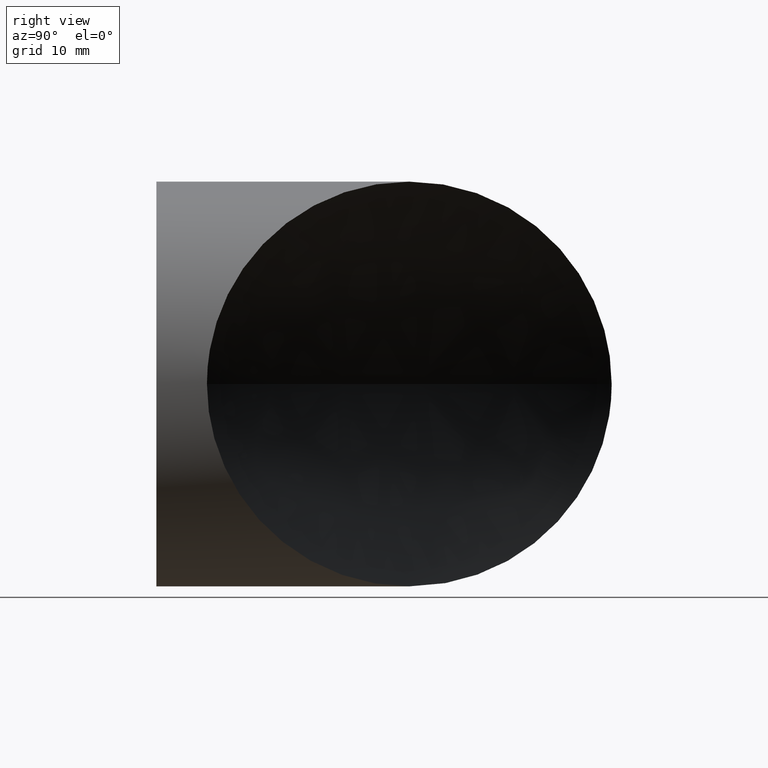
[diagram: clean part render]
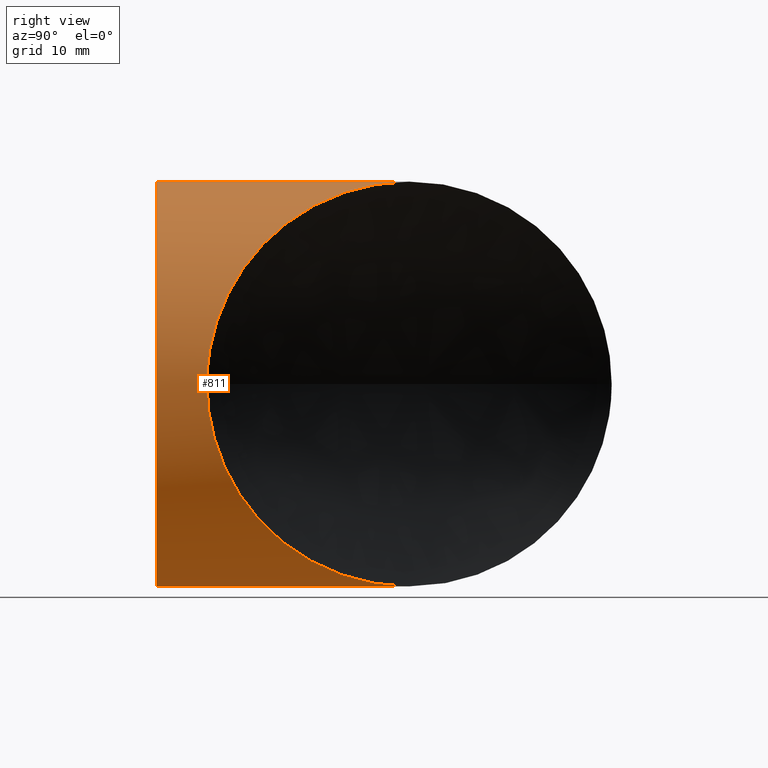
[diagram: same view with one face highlighted and labeled with its STEP entity id]
A machine part, right view. The second image highlights one B-rep face of the part: STEP entity #811.
In plain terms, the highlighted cylindrical surface (partial cylindrical patch) has radius 25.4 mm, axis along (-0, -1, -0).
Its self-contained STEP definition (entity closure, byte-faithful):
#10 = CARTESIAN_POINT ( 'NONE',  ( 3.110602869834276865E-15, 90.23632920900077181, 25.39999999999999858 ) ) ;
#30 = VERTEX_POINT ( 'NONE', #718 ) ;
#39 = CARTESIAN_POINT ( 'NONE',  ( 20.88705431034938798, 10.86294568977931618, -14.45970665876703443 ) ) ;
#44 = CARTESIAN_POINT ( 'NONE',  ( 15.75322996235737527, 15.99677003777224016, 19.94088469936381713 ) ) ;
#46 = CARTESIAN_POINT ( 'NONE',  ( 2.867070042870211832, 28.88292995726230927, -25.24789856614434314 ) ) ;
#54 = CARTESIAN_POINT ( 'NONE',  ( 3.574495887741338418, 28.17550411239097485, 25.15748655172640724 ) ) ;
#86 = VECTOR ( 'NONE', #746, 1000.000000000000000 ) ;
#101 = CARTESIAN_POINT ( 'NONE',  ( 21.85500477762742122, 9.894995222501284715, -12.97336527762334768 ) ) ;
#107 = CARTESIAN_POINT ( 'NONE',  ( 23.67062844458222770, 8.079371555545424854, 9.224653027086247903 ) ) ;
#108 = CARTESIAN_POINT ( 'NONE',  ( 7.107514868007380748, 24.64248513212402614, -24.42891655262618755 ) ) ;
#112 = CARTESIAN_POINT ( 'NONE',  ( 23.49425201712657341, 8.255747983001402446, -9.664520403935878079 ) ) ;
#117 = CARTESIAN_POINT ( 'NONE',  ( 17.59307431041942138, 14.15692568970981036, 18.39065751051364117 ) ) ;
#120 = CARTESIAN_POINT ( 'NONE',  ( 15.12322275978768715, 16.62677724034237770, 20.42218853992491745 ) ) ;
#127 = DIRECTION ( 'NONE',  ( 0.0000000000000000000, 1.000000000000000000, 0.0000000000000000000 ) ) ;
#129 = CARTESIAN_POINT ( 'NONE',  ( 3.110602869834276865E-15, 0.0000000000000000000, 25.39999999999999858 ) ) ;
#151 = EDGE_CURVE ( 'NONE', #402, #30, #394, .T. ) ;
#164 = CARTESIAN_POINT ( 'NONE',  ( 18.76394866295361297, 12.98605133717579996, -17.20628069572504160 ) ) ;
#169 = CARTESIAN_POINT ( 'NONE',  ( 15.14683054439614551, 16.60316945573448422, -20.40453238910384215 ) ) ;
#171 = CARTESIAN_POINT ( 'NONE',  ( 13.17241457465186194, 18.57758542547887259, 21.72089280077187823 ) ) ;
#181 = CARTESIAN_POINT ( 'NONE',  ( -3.679782173415781046E-12, 31.75000000013650236, 25.39999999999956160 ) ) ;
#192 = DIRECTION ( 'NONE',  ( 0.0000000000000000000, 0.0000000000000000000, -1.000000000000000000 ) ) ;
#195 = ORIENTED_EDGE ( 'NONE', *, *, #422, .T. ) ;
#205 = B_SPLINE_CURVE_WITH_KNOTS ( 'NONE', 3,
 ( #181, #520, #594, #513, #54, #523, #370, #871, #454, #675, #171, #516, #301, #120, #44, #117, #793, #374, #314, #449, #671, #511, #864, #308, #589, #869, #107, #881, #241, #804, #666, #232, #385, #600 ),
 .UNSPECIFIED., .F., .F.,
 ( 4, 2, 2, 2, 2, 2, 2, 2, 2, 2, 2, 2, 2, 2, 2, 2, 4 ),
 ( 0.09612468396210317734, 0.09912765318118503532, 0.1021306224002669072, 0.1081365608384306232, 0.1141424992765943391, 0.1156439838861352820, 0.1171454684956762110, 0.1201484377147580551, 0.1261543761529217711, 0.1276558607624626862, 0.1291573453720036013, 0.1321603145910854593, 0.1336617992006263744, 0.1351632838101672895, 0.1381662530292491475, 0.1411692222483309778, 0.1441721914674128358 ),
 .UNSPECIFIED. ) ;
#218 = VERTEX_POINT ( 'NONE', #129 ) ;
#227 = EDGE_CURVE ( 'NONE', #30, #529, #283, .T. ) ;
#230 = CARTESIAN_POINT ( 'NONE',  ( 20.11151564916537637, 11.63848435096375766, -15.52009358360201574 ) ) ;
#232 = CARTESIAN_POINT ( 'NONE',  ( 25.34003501377293333, 6.409964986354879990, 2.019679683124773639 ) ) ;
#233 = CARTESIAN_POINT ( 'NONE',  ( 24.80328668270988501, 6.946713317420750045, -5.495410143724362761 ) ) ;
#241 = CARTESIAN_POINT ( 'NONE',  ( 24.45451196593779741, 7.295488034191129678, 6.935761289249204431 ) ) ;
#283 = LINE ( 'NONE', #739, #86 ) ;
#301 = CARTESIAN_POINT ( 'NONE',  ( 14.15460011605796176, 17.59539988407230737, 21.09411549236201111 ) ) ;
#302 = CARTESIAN_POINT ( 'NONE',  ( 21.13504976809075231, 10.61495023203810817, -14.09492928022434555 ) ) ;
#306 = CARTESIAN_POINT ( 'NONE',  ( 11.21135902792945593, 20.53864097220131768, -22.84290149297242678 ) ) ;
#308 = CARTESIAN_POINT ( 'NONE',  ( 22.91856478369641081, 8.831435216432451440, 10.95957008674894340 ) ) ;
#314 = CARTESIAN_POINT ( 'NONE',  ( 20.36646652801895030, 11.38353347211029742, 15.18420568538931725 ) ) ;
#315 = CYLINDRICAL_SURFACE ( 'NONE', #344, 25.39999999999999858 ) ;
#344 = AXIS2_PLACEMENT_3D ( 'NONE', #398, #890, #192 ) ;
#363 = CARTESIAN_POINT ( 'NONE',  ( 2.883977778811441794E-14, 31.75000000013288570, -25.39999999999999147 ) ) ;
#368 = CARTESIAN_POINT ( 'NONE',  ( 24.90605418778440239, 6.843945812344093937, -5.009901835499978695 ) ) ;
#370 = CARTESIAN_POINT ( 'NONE',  ( 7.093618743404350724, 24.65638125672682079, 24.43274036757645362 ) ) ;
#374 = CARTESIAN_POINT ( 'NONE',  ( 20.10158260010981124, 11.64841740001844350, 15.53295033665355973 ) ) ;
#376 = CARTESIAN_POINT ( 'NONE',  ( 23.11892783635457960, 8.631072163773485073, -10.53081232288272950 ) ) ;
#385 = CARTESIAN_POINT ( 'NONE',  ( 25.39999999999913172, 6.350000000128638078, 1.008915357866120521 ) ) ;
#394 = B_SPLINE_CURVE_WITH_KNOTS ( 'NONE', 3,
 ( #866, #590, #669, #734, #515, #368, #233, #507, #441, #662, #112, #376, #872, #731, #101, #302, #39, #502, #230, #164, #583, #576, #169, #446, #658, #306, #794, #108, #721, #790, #46, #512, #586, #363 ),
 .UNSPECIFIED., .F., .F.,
 ( 4, 2, 2, 2, 2, 2, 2, 2, 2, 2, 2, 2, 2, 2, 2, 2, 4 ),
 ( 0.1441721914674128358, 0.1471718213889993410, 0.1486716363497926074, 0.1501714513105858462, 0.1531710812321723791, 0.1546708961929656179, 0.1561707111537588843, 0.1591703410753453896, 0.1606701560361386560, 0.1621699709969319225, 0.1681692308401049329, 0.1711688607616914659, 0.1741684906832779711, 0.1801677505264509815, 0.1861670103696240197, 0.1891666402912105249, 0.1921662702127970301 ),
 .UNSPECIFIED. ) ;
#398 = CARTESIAN_POINT ( 'NONE',  ( 0.0000000000000000000, 90.23632920900077181, 0.0000000000000000000 ) ) ;
#401 = DIRECTION ( 'NONE',  ( -0.0000000000000000000, -1.000000000000000000, -0.0000000000000000000 ) ) ;
#402 = VERTEX_POINT ( 'NONE', #763 ) ;
#409 = VECTOR ( 'NONE', #401, 1000.000000000000000 ) ;
#422 = EDGE_CURVE ( 'NONE', #785, #218, #567, .T. ) ;
#441 = CARTESIAN_POINT ( 'NONE',  ( 24.17195477904431655, 7.578045221083539396, -7.861663276407822920 ) ) ;
#446 = CARTESIAN_POINT ( 'NONE',  ( 13.86304219773789548, 17.88695780239301669, -21.29759325798054093 ) ) ;
#449 = CARTESIAN_POINT ( 'NONE',  ( 20.87945820685417786, 10.87054179327496328, 14.47070440999178587 ) ) ;
#454 = CARTESIAN_POINT ( 'NONE',  ( 11.18778706063964101, 20.56221293949156603, 22.85407206432742200 ) ) ;
#502 = CARTESIAN_POINT ( 'NONE',  ( 20.37567222706591252, 11.37432777306289644, -15.17182044832627597 ) ) ;
#507 = CARTESIAN_POINT ( 'NONE',  ( 24.45577271687534804, 7.294227283255354521, -6.931481260857233373 ) ) ;
#511 = CARTESIAN_POINT ( 'NONE',  ( 21.85001223646394664, 9.899987763665203389, 12.98188855473107317 ) ) ;
#512 = CARTESIAN_POINT ( 'NONE',  ( 1.434912573058196195, 30.31508742707463000, -25.36961762708924084 ) ) ;
#513 = CARTESIAN_POINT ( 'NONE',  ( 2.858770735339183577, 28.89122926479362974, 25.24882967334723105 ) ) ;
#515 = CARTESIAN_POINT ( 'NONE',  ( 25.08412957153814915, 6.665870428590300989, -4.024561497167614910 ) ) ;
#516 = CARTESIAN_POINT ( 'NONE',  ( 13.82786354782251159, 17.92213645230806662, 21.30961941217922728 ) ) ;
#519 = ORIENTED_EDGE ( 'NONE', *, *, #151, .F. ) ;
#520 = CARTESIAN_POINT ( 'NONE',  ( 0.7129421596533628280, 31.03705784047942373, 25.40000000000033964 ) ) ;
#523 = CARTESIAN_POINT ( 'NONE',  ( 5.698947039455231511, 26.05105296067662835, 24.79408406149674349 ) ) ;
#525 = DIRECTION ( 'NONE',  ( 0.0000000000000000000, 0.0000000000000000000, 1.000000000000000000 ) ) ;
#529 = VERTEX_POINT ( 'NONE', #778 ) ;
#567 = LINE ( 'NONE', #10, #409 ) ;
#576 = CARTESIAN_POINT ( 'NONE',  ( 15.77365983276854777, 15.97634016736072837, -19.92461959033024854 ) ) ;
#578 = FACE_OUTER_BOUND ( 'NONE', #656, .T. ) ;
#583 = CARTESIAN_POINT ( 'NONE',  ( 17.60588103588828801, 14.14411896424057957, -18.37792682288791113 ) ) ;
#586 = CARTESIAN_POINT ( 'NONE',  ( 0.7170981315369029385, 31.03290186859586441, -25.39999999999999503 ) ) ;
#589 = CARTESIAN_POINT ( 'NONE',  ( 23.11608779369771227, 8.633912206431645586, 10.53705452662698328 ) ) ;
#590 = CARTESIAN_POINT ( 'NONE',  ( 25.39999999999913527, 6.350000000128643407, -1.007793445425023027 ) ) ;
#594 = CARTESIAN_POINT ( 'NONE',  ( 1.427272103734051001, 30.32272789639907984, 25.37003871366447072 ) ) ;
#596 = EDGE_CURVE ( 'NONE', #218, #529, #779, .T. ) ;
#600 = CARTESIAN_POINT ( 'NONE',  ( 25.39999999999913527, 6.350000000128641631, 0.0000000000000000000 ) ) ;
#656 = EDGE_LOOP ( 'NONE', ( #874, #195, #840, #818, #519 ) ) ;
#658 = CARTESIAN_POINT ( 'NONE',  ( 13.20369527699235768, 18.54630472313797895, -21.71187718738416095 ) ) ;
#662 = CARTESIAN_POINT ( 'NONE',  ( 23.67293359248496998, 8.077066407642984558, -9.218703919411845860 ) ) ;
#666 = CARTESIAN_POINT ( 'NONE',  ( 25.09710067349299578, 6.652899326634874377, 4.041289188640527108 ) ) ;
#669 = CARTESIAN_POINT ( 'NONE',  ( 25.34023511099161752, 6.409764889136280175, -2.014352294051016123 ) ) ;
#671 = CARTESIAN_POINT ( 'NONE',  ( 21.12816750881976446, 10.62183249130954366, 14.10527043393879332 ) ) ;
#675 = CARTESIAN_POINT ( 'NONE',  ( 12.84298988542193953, 18.90701011470891046, 21.91716930012155728 ) ) ;
#683 = CARTESIAN_POINT ( 'NONE',  ( 0.0000000000000000000, 0.0000000000000000000, 0.0000000000000000000 ) ) ;
#718 = CARTESIAN_POINT ( 'NONE',  ( 2.883977778811441794E-14, 31.75000000013288570, -25.39999999999999147 ) ) ;
#721 = CARTESIAN_POINT ( 'NONE',  ( 5.710304965994422055, 26.03969503413772912, -24.79159247131764587 ) ) ;
#730 = CARTESIAN_POINT ( 'NONE',  ( -3.679782173415781046E-12, 31.75000000013650236, 25.39999999999956160 ) ) ;
#731 = CARTESIAN_POINT ( 'NONE',  ( 22.30305074657549369, 9.446949253552611836, -12.18948025353335396 ) ) ;
#734 = CARTESIAN_POINT ( 'NONE',  ( 25.15968195515156580, 6.590318044976376299, -3.522312674482941830 ) ) ;
#739 = CARTESIAN_POINT ( 'NONE',  ( 0.0000000000000000000, 90.23632920900077181, -25.39999999999999858 ) ) ;
#746 = DIRECTION ( 'NONE',  ( -0.0000000000000000000, -1.000000000000000000, -0.0000000000000000000 ) ) ;
#763 = CARTESIAN_POINT ( 'NONE',  ( 25.39999999999913527, 6.350000000128641631, 0.0000000000000000000 ) ) ;
#778 = CARTESIAN_POINT ( 'NONE',  ( 0.0000000000000000000, 0.0000000000000000000, -25.39999999999999858 ) ) ;
#779 = CIRCLE ( 'NONE', #867, 25.39999999999999858 ) ;
#783 = EDGE_CURVE ( 'NONE', #785, #402, #205, .T. ) ;
#785 = VERTEX_POINT ( 'NONE', #730 ) ;
#790 = CARTESIAN_POINT ( 'NONE',  ( 3.582885925746834843, 28.16711407438576842, -25.15632303140141346 ) ) ;
#793 = CARTESIAN_POINT ( 'NONE',  ( 18.75366693860866363, 12.99633306151988243, 17.21739479120811112 ) ) ;
#794 = CARTESIAN_POINT ( 'NONE',  ( 9.858009842703722825, 21.89199015742710230, -23.45438921556637624 ) ) ;
#804 = CARTESIAN_POINT ( 'NONE',  ( 24.91773559159826590, 6.832264408530554611, 5.023384629991958228 ) ) ;
#811 = ADVANCED_FACE ( 'NONE', ( #578 ), #315, .T. ) ;
#818 = ORIENTED_EDGE ( 'NONE', *, *, #227, .F. ) ;
#840 = ORIENTED_EDGE ( 'NONE', *, *, #596, .T. ) ;
#864 = CARTESIAN_POINT ( 'NONE',  ( 22.29898126052409424, 9.451018739604913677, 12.19699092670377638 ) ) ;
#866 = CARTESIAN_POINT ( 'NONE',  ( 25.39999999999913527, 6.350000000128641631, 0.0000000000000000000 ) ) ;
#867 = AXIS2_PLACEMENT_3D ( 'NONE', #683, #127, #525 ) ;
#869 = CARTESIAN_POINT ( 'NONE',  ( 23.49180749686719949, 8.258192503262073103, 9.670471214640192770 ) ) ;
#871 = CARTESIAN_POINT ( 'NONE',  ( 9.838007526098454747, 21.91199247403213235, 23.46256244877373476 ) ) ;
#872 = CARTESIAN_POINT ( 'NONE',  ( 22.92166091688593710, 8.828339083242036978, -10.95307427963509816 ) ) ;
#874 = ORIENTED_EDGE ( 'NONE', *, *, #783, .F. ) ;
#881 = CARTESIAN_POINT ( 'NONE',  ( 24.17058905248792300, 7.579410947639630081, 7.866010588745353971 ) ) ;
#890 = DIRECTION ( 'NONE',  ( -0.0000000000000000000, -1.000000000000000000, -0.0000000000000000000 ) ) ;